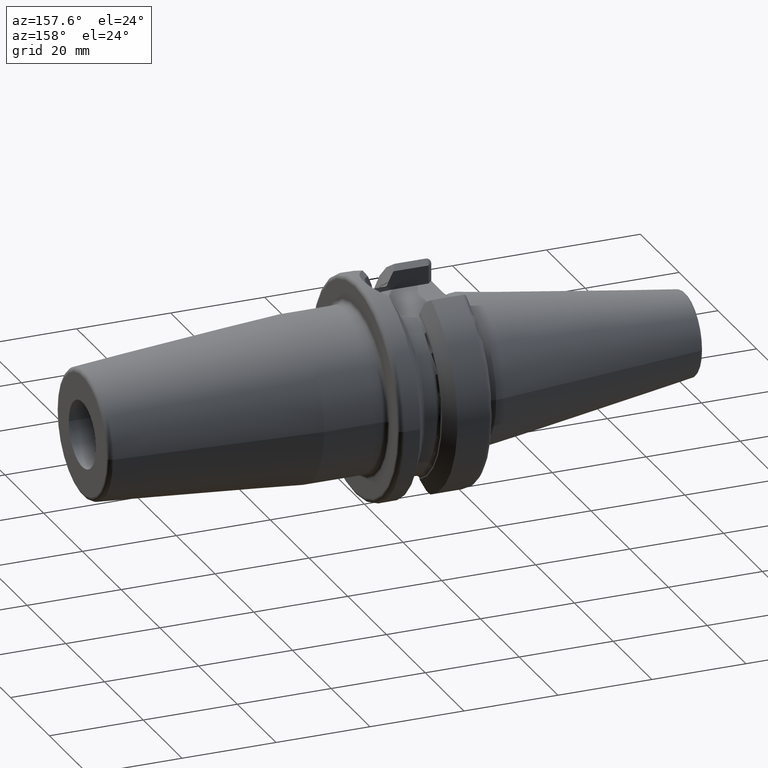
[diagram: clean part render]
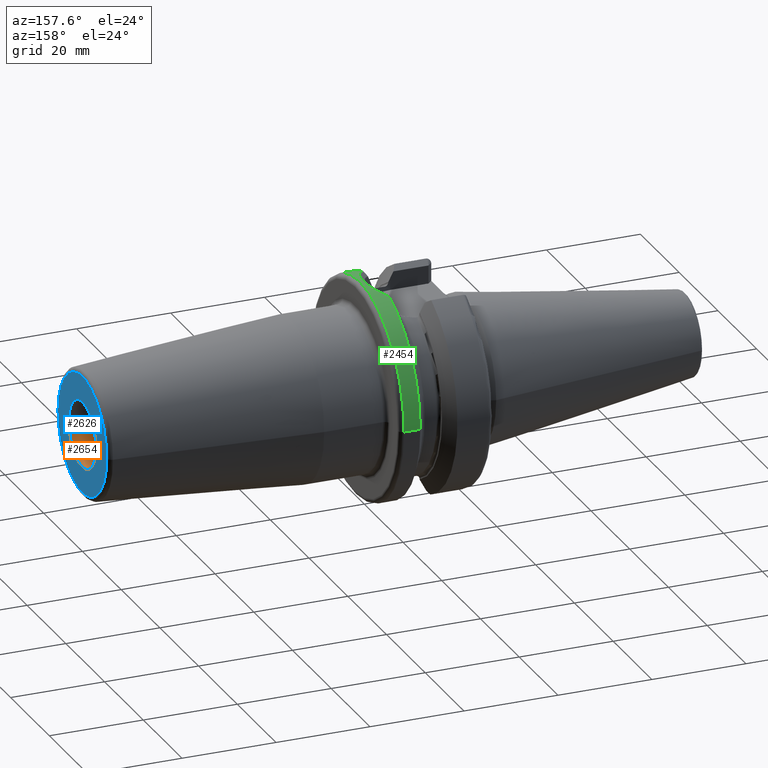
[diagram: same view with three faces highlighted in distinct colors, each labeled with its STEP entity id]
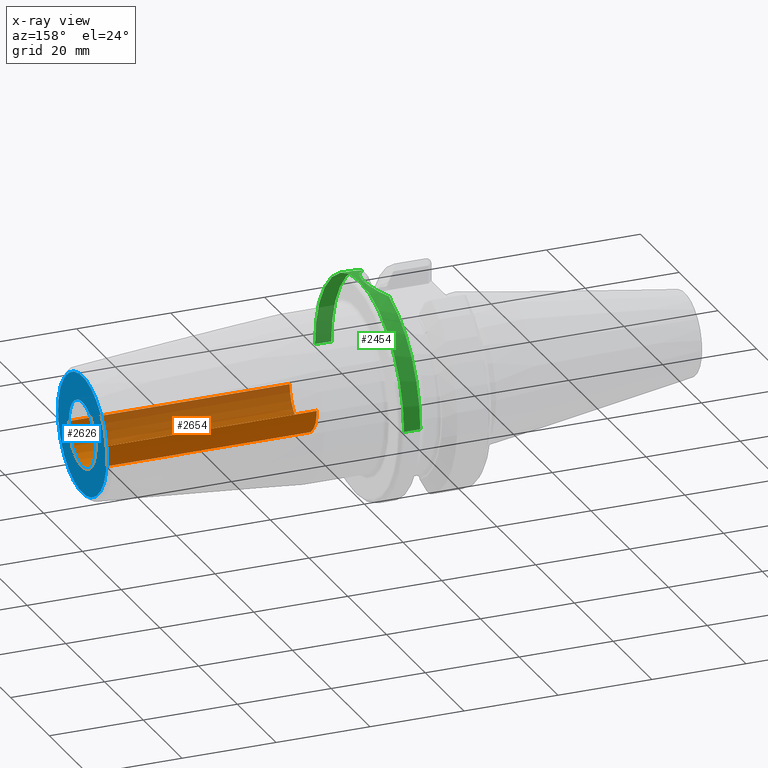
[diagram: x-ray of the same camera — body ghosted, the three highlighted faces saturated]
A machine part, auxiliary view with three faces highlighted in distinct colors.
The next image is the same camera in x-ray (body ghosted, the three faces saturated) — at least one of them is partly hidden behind the body in this view.
Their STEP definitions:

[orange] entity #2654 — the highlighted cylindrical surface (edge-blend (fillet) strip) has radius 7 mm, axis along (-1, 0, 0).
#903=CARTESIAN_POINT('',(8.E1,0.E0,0.E0));
#904=DIRECTION('',(-1.E0,0.E0,0.E0));
#905=DIRECTION('',(0.E0,1.E0,0.E0));
#906=AXIS2_PLACEMENT_3D('',#903,#904,#905);
#918=DIRECTION('',(-1.E0,0.E0,0.E0));
#919=VECTOR('',#918,4.7E1);
#920=CARTESIAN_POINT('',(8.E1,-7.E0,0.E0));
#921=LINE('',#920,#919);
#922=DIRECTION('',(-1.E0,0.E0,0.E0));
#923=VECTOR('',#922,4.7E1);
#924=CARTESIAN_POINT('',(8.E1,7.E0,0.E0));
#925=LINE('',#924,#923);
#931=CARTESIAN_POINT('',(3.3E1,0.E0,0.E0));
#932=DIRECTION('',(-1.E0,0.E0,0.E0));
#933=DIRECTION('',(0.E0,1.E0,0.E0));
#934=AXIS2_PLACEMENT_3D('',#931,#932,#933);
#1375=CARTESIAN_POINT('',(3.3E1,-7.E0,0.E0));
#1376=CARTESIAN_POINT('',(3.3E1,7.E0,0.E0));
#1377=VERTEX_POINT('',#1375);
#1378=VERTEX_POINT('',#1376);
#1379=CARTESIAN_POINT('',(8.E1,-7.E0,0.E0));
#1380=CARTESIAN_POINT('',(8.E1,7.E0,0.E0));
#1381=VERTEX_POINT('',#1379);
#1382=VERTEX_POINT('',#1380);
#2642=CARTESIAN_POINT('',(8.E1,0.E0,0.E0));
#2643=DIRECTION('',(-1.E0,0.E0,0.E0));
#2644=DIRECTION('',(0.E0,-1.E0,0.E0));
#2645=AXIS2_PLACEMENT_3D('',#2642,#2643,#2644);
#2646=CYLINDRICAL_SURFACE('',#2645,7.E0);
#2647=ORIENTED_EDGE('',*,*,#2622,.T.);
#2648=ORIENTED_EDGE('',*,*,#2637,.T.);
#2650=ORIENTED_EDGE('',*,*,#2649,.F.);
#2651=ORIENTED_EDGE('',*,*,#2633,.F.);
#2652=EDGE_LOOP('',(#2647,#2648,#2650,#2651));
#2653=FACE_OUTER_BOUND('',#2652,.F.);
#2654=ADVANCED_FACE('',(#2653),#2646,.F.);
#907=CIRCLE('',#906,7.E0);
#935=CIRCLE('',#934,7.E0);
#2622=EDGE_CURVE('',#1382,#1381,#907,.T.);
#2633=EDGE_CURVE('',#1382,#1378,#925,.T.);
#2637=EDGE_CURVE('',#1381,#1377,#921,.T.);
#2649=EDGE_CURVE('',#1378,#1377,#935,.T.);

[blue] entity #2626 — the highlighted planar face has unit normal (1, 0, 0).
#898=CARTESIAN_POINT('',(8.E1,0.E0,0.E0));
#899=DIRECTION('',(-1.E0,0.E0,0.E0));
#900=DIRECTION('',(0.E0,-1.E0,0.E0));
#901=AXIS2_PLACEMENT_3D('',#898,#899,#900);
#903=CARTESIAN_POINT('',(8.E1,0.E0,0.E0));
#904=DIRECTION('',(-1.E0,0.E0,0.E0));
#905=DIRECTION('',(0.E0,1.E0,0.E0));
#906=AXIS2_PLACEMENT_3D('',#903,#904,#905);
#908=CARTESIAN_POINT('',(8.E1,0.E0,0.E0));
#909=DIRECTION('',(-1.E0,0.E0,0.E0));
#910=DIRECTION('',(0.E0,1.E0,0.E0));
#911=AXIS2_PLACEMENT_3D('',#908,#909,#910);
#913=CARTESIAN_POINT('',(8.E1,0.E0,0.E0));
#914=DIRECTION('',(-1.E0,0.E0,0.E0));
#915=DIRECTION('',(0.E0,-1.E0,0.E0));
#916=AXIS2_PLACEMENT_3D('',#913,#914,#915);
#1379=CARTESIAN_POINT('',(8.E1,-7.E0,0.E0));
#1380=CARTESIAN_POINT('',(8.E1,7.E0,0.E0));
#1381=VERTEX_POINT('',#1379);
#1382=VERTEX_POINT('',#1380);
#1399=CARTESIAN_POINT('',(8.E1,1.257560950834E1,0.E0));
#1400=CARTESIAN_POINT('',(8.E1,-1.257560950834E1,0.E0));
#1401=VERTEX_POINT('',#1399);
#1402=VERTEX_POINT('',#1400);
#2611=CARTESIAN_POINT('',(8.E1,0.E0,0.E0));
#2612=DIRECTION('',(1.E0,0.E0,0.E0));
#2613=DIRECTION('',(0.E0,-1.E0,0.E0));
#2614=AXIS2_PLACEMENT_3D('',#2611,#2612,#2613);
#2615=PLANE('',#2614);
#2616=ORIENTED_EDGE('',*,*,#2605,.T.);
#2617=ORIENTED_EDGE('',*,*,#2591,.T.);
#2618=EDGE_LOOP('',(#2616,#2617));
#2619=FACE_OUTER_BOUND('',#2618,.F.);
#2621=ORIENTED_EDGE('',*,*,#2620,.F.);
#2623=ORIENTED_EDGE('',*,*,#2622,.F.);
#2624=EDGE_LOOP('',(#2621,#2623));
#2625=FACE_BOUND('',#2624,.F.);
#2626=ADVANCED_FACE('',(#2619,#2625),#2615,.T.);
#902=CIRCLE('',#901,7.E0);
#907=CIRCLE('',#906,7.E0);
#912=CIRCLE('',#911,1.257560950834E1);
#917=CIRCLE('',#916,1.257560950834E1);
#2591=EDGE_CURVE('',#1402,#1401,#917,.T.);
#2605=EDGE_CURVE('',#1401,#1402,#912,.T.);
#2620=EDGE_CURVE('',#1381,#1382,#902,.T.);
#2622=EDGE_CURVE('',#1382,#1381,#907,.T.);

[green] entity #2454 — the highlighted cylindrical surface (partial cylindrical patch) has radius 22.99 mm, axis along (1, 0, 0).
#231=DIRECTION('',(-1.E0,0.E0,0.E0));
#232=VECTOR('',#231,3.450924158743E0);
#233=CARTESIAN_POINT('',(2.1E1,-2.299E1,0.E0));
#234=LINE('',#233,#232);
#240=DIRECTION('',(-1.E0,0.E0,0.E0));
#241=VECTOR('',#240,3.450924158743E0);
#242=CARTESIAN_POINT('',(2.1E1,2.299E1,0.E0));
#243=LINE('',#242,#241);
#773=CARTESIAN_POINT('',(1.754907584126E1,0.E0,0.E0));
#774=DIRECTION('',(1.E0,0.E0,0.E0));
#775=DIRECTION('',(0.E0,1.E0,0.E0));
#776=AXIS2_PLACEMENT_3D('',#773,#774,#775);
#778=CARTESIAN_POINT('',(2.1E1,0.E0,0.E0));
#779=DIRECTION('',(1.E0,0.E0,0.E0));
#780=DIRECTION('',(0.E0,1.E0,0.E0));
#781=AXIS2_PLACEMENT_3D('',#778,#779,#780);
#783=CARTESIAN_POINT('',(1.754907584126E1,0.E0,0.E0));
#784=DIRECTION('',(1.E0,0.E0,0.E0));
#785=DIRECTION('',(0.E0,-2.941213407634E-1,9.557680874080E-1));
#786=AXIS2_PLACEMENT_3D('',#783,#784,#785);
#788=CARTESIAN_POINT('',(1.754907584126E1,6.761871244710E0,2.197310167614E1));
#789=CARTESIAN_POINT('',(1.768866712313E1,6.617664565275E0,2.201749422993E1));
#790=CARTESIAN_POINT('',(1.821021271727E1,6.042978757576E0,2.218832716973E1));
#791=CARTESIAN_POINT('',(1.898952564952E1,4.933496438630E0,2.247191474384E1));
#792=CARTESIAN_POINT('',(1.971382740307E1,3.367711516436E0,2.276168278345E1));
#793=CARTESIAN_POINT('',(2.014981507134E1,1.713556085137E0,2.294641835617E1));
#794=CARTESIAN_POINT('',(2.029627211771E1,4.350382510710E-2,2.301013849182E1));
#795=CARTESIAN_POINT('',(2.016452454559E1,-1.626373731246E0,2.295278037961E1));
#796=CARTESIAN_POINT('',(1.974352192165E1,-3.283871780500E0,2.277402245506E1));
#797=CARTESIAN_POINT('',(1.903395600771E1,-4.855335925356E0,2.248907028024E1));
#798=CARTESIAN_POINT('',(1.824850274013E1,-5.996433630648E0,2.220149296988E1));
#799=CARTESIAN_POINT('',(1.770930838653E1,-6.596292284182E0,2.202406983618E1));
#800=CARTESIAN_POINT('',(1.754907584126E1,-6.761849624151E0,2.197310832951E1));
#1212=CARTESIAN_POINT('',(1.754907584126E1,2.299E1,0.E0));
#1213=CARTESIAN_POINT('',(1.754907584126E1,6.761871244710E0,2.197310167614E1));
#1214=VERTEX_POINT('',#1212);
#1215=VERTEX_POINT('',#1213);
#1216=CARTESIAN_POINT('',(1.754907584126E1,-2.299E1,0.E0));
#1218=VERTEX_POINT('',#1216);
#1220=CARTESIAN_POINT('',(2.1E1,2.299E1,0.E0));
#1221=VERTEX_POINT('',#1220);
#1222=CARTESIAN_POINT('',(2.1E1,-2.299E1,0.E0));
#1223=VERTEX_POINT('',#1222);
#1224=CARTESIAN_POINT('',(1.754907584126E1,-6.761849624151E0,2.197310832951E1));
#1225=VERTEX_POINT('',#1224);
#2439=CARTESIAN_POINT('',(-5.192E1,0.E0,0.E0));
#2440=DIRECTION('',(1.E0,0.E0,0.E0));
#2441=DIRECTION('',(0.E0,-1.E0,0.E0));
#2442=AXIS2_PLACEMENT_3D('',#2439,#2440,#2441);
#2443=CYLINDRICAL_SURFACE('',#2442,2.299E1);
#2444=ORIENTED_EDGE('',*,*,#2357,.F.);
#2445=ORIENTED_EDGE('',*,*,#1716,.F.);
#2447=ORIENTED_EDGE('',*,*,#2446,.T.);
#2448=ORIENTED_EDGE('',*,*,#1712,.T.);
#2449=ORIENTED_EDGE('',*,*,#2370,.F.);
#2451=ORIENTED_EDGE('',*,*,#2450,.F.);
#2452=EDGE_LOOP('',(#2444,#2445,#2447,#2448,#2449,#2451));
#2453=FACE_OUTER_BOUND('',#2452,.F.);
#2454=ADVANCED_FACE('',(#2453),#2443,.T.);
#777=CIRCLE('',#776,2.299E1);
#782=CIRCLE('',#781,2.299E1);
#787=CIRCLE('',#786,2.299E1);
#801=B_SPLINE_CURVE_WITH_KNOTS('',3,(#788,#789,#790,#791,#792,#793,#794,#795,
#796,#797,#798,#799,#800),.UNSPECIFIED.,.F.,.F.,(4,1,1,1,1,1,1,1,1,1,4),(0.E0,
3.998498018950E-2,1.542527032415E-1,2.685204262936E-1,3.827881493456E-1,
4.970558723976E-1,6.113235954496E-1,7.255913185017E-1,8.398590415537E-1,
9.541267646057E-1,1.E0),.UNSPECIFIED.);
#1712=EDGE_CURVE('',#1223,#1218,#234,.T.);
#1716=EDGE_CURVE('',#1221,#1214,#243,.T.);
#2357=EDGE_CURVE('',#1214,#1215,#777,.T.);
#2370=EDGE_CURVE('',#1225,#1218,#787,.T.);
#2446=EDGE_CURVE('',#1221,#1223,#782,.T.);
#2450=EDGE_CURVE('',#1215,#1225,#801,.T.);